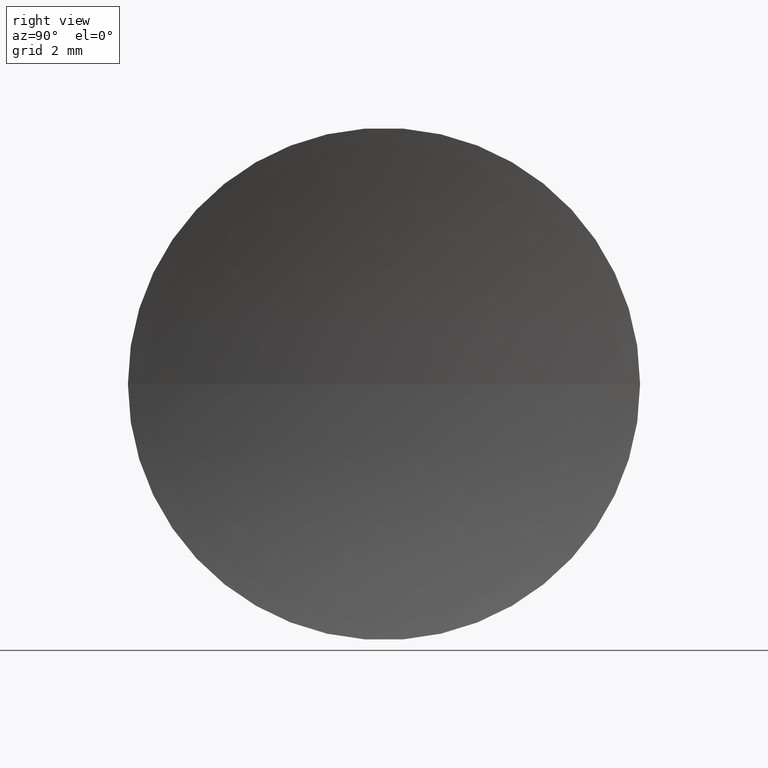
[diagram: clean part render]
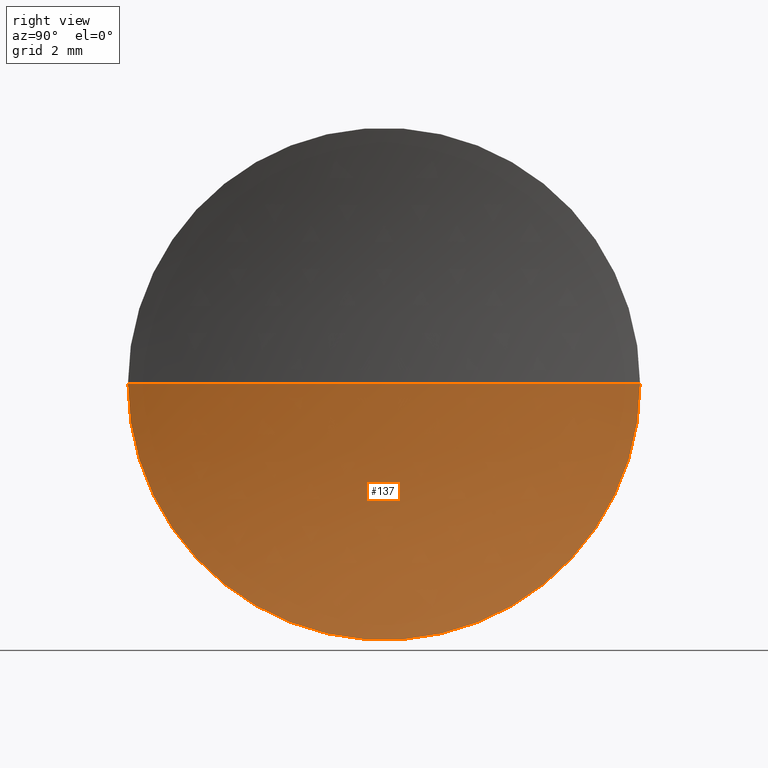
[diagram: same view with one face highlighted and labeled with its STEP entity id]
A machine part, right view. The second image highlights one B-rep face of the part: STEP entity #137.
In plain terms, the highlighted spherical surface has radius 20.65 mm.
Its self-contained STEP definition (entity closure, byte-faithful):
#9 = DIRECTION ( 'NONE',  ( -1.000000000000000000, 3.159171411554934600E-016, -0.0000000000000000000 ) ) ;
#10 = AXIS2_PLACEMENT_3D ( 'NONE', #124, #32, #89 ) ;
#12 = CARTESIAN_POINT ( 'NONE',  ( 24.53870111481097600, 8.031126091403018900, -6.123233995736789000E-016 ) ) ;
#14 = SPHERICAL_SURFACE ( 'NONE', #125, 20.65000000000000200 ) ;
#16 = ORIENTED_EDGE ( 'NONE', *, *, #64, .F. ) ;
#24 = CARTESIAN_POINT ( 'NONE',  ( 44.57423205362065500, 13.03112609140303100, 0.0000000000000000000 ) ) ;
#27 = AXIS2_PLACEMENT_3D ( 'NONE', #142, #9, #115 ) ;
#32 = DIRECTION ( 'NONE',  ( 3.868869157118576300E-032, 1.224646799147353200E-016, -1.000000000000000000 ) ) ;
#45 = CARTESIAN_POINT ( 'NONE',  ( 24.53870111481098000, 18.03112609140306000, 0.0000000000000000000 ) ) ;
#55 = VERTEX_POINT ( 'NONE', #45 ) ;
#64 = EDGE_CURVE ( 'NONE', #88, #121, #104, .T. ) ;
#68 = DIRECTION ( 'NONE',  ( 0.0000000000000000000, 0.0000000000000000000, -1.000000000000000000 ) ) ;
#86 = DIRECTION ( 'NONE',  ( 0.0000000000000000000, 0.0000000000000000000, 1.000000000000000000 ) ) ;
#88 = VERTEX_POINT ( 'NONE', #12 ) ;
#89 = DIRECTION ( 'NONE',  ( 0.0000000000000000000, 1.000000000000000000, 1.224646799147353500E-016 ) ) ;
#91 = EDGE_CURVE ( 'NONE', #55, #121, #99, .T. ) ;
#99 = CIRCLE ( 'NONE', #108, 20.65000000000000200 ) ;
#104 = CIRCLE ( 'NONE', #10, 20.64999999999999900 ) ;
#105 = CIRCLE ( 'NONE', #27, 5.000000000000002700 ) ;
#106 = EDGE_LOOP ( 'NONE', ( #16, #141, #152 ) ) ;
#108 = AXIS2_PLACEMENT_3D ( 'NONE', #24, #86, #154 ) ;
#109 = DIRECTION ( 'NONE',  ( 3.360239178647568300E-016, 1.000000000000000000, 0.0000000000000000000 ) ) ;
#115 = DIRECTION ( 'NONE',  ( 0.0000000000000000000, -1.000000000000000000, 0.0000000000000000000 ) ) ;
#121 = VERTEX_POINT ( 'NONE', #166 ) ;
#124 = CARTESIAN_POINT ( 'NONE',  ( 44.57423205362065500, 13.03112609140303100, 0.0000000000000000000 ) ) ;
#125 = AXIS2_PLACEMENT_3D ( 'NONE', #149, #68, #109 ) ;
#137 = ADVANCED_FACE ( 'NONE', ( #139 ), #14, .F. ) ;
#139 = FACE_OUTER_BOUND ( 'NONE', #106, .T. ) ;
#141 = ORIENTED_EDGE ( 'NONE', *, *, #164, .F. ) ;
#142 = CARTESIAN_POINT ( 'NONE',  ( 24.53870111481097600, 13.03112609140304000, 0.0000000000000000000 ) ) ;
#149 = CARTESIAN_POINT ( 'NONE',  ( 44.57423205362065500, 13.03112609140303100, 0.0000000000000000000 ) ) ;
#152 = ORIENTED_EDGE ( 'NONE', *, *, #91, .T. ) ;
#154 = DIRECTION ( 'NONE',  ( 1.000000000000000000, 0.0000000000000000000, 0.0000000000000000000 ) ) ;
#164 = EDGE_CURVE ( 'NONE', #55, #88, #105, .T. ) ;
#166 = CARTESIAN_POINT ( 'NONE',  ( 23.92423205362065300, 13.03112609140303800, 0.0000000000000000000 ) ) ;